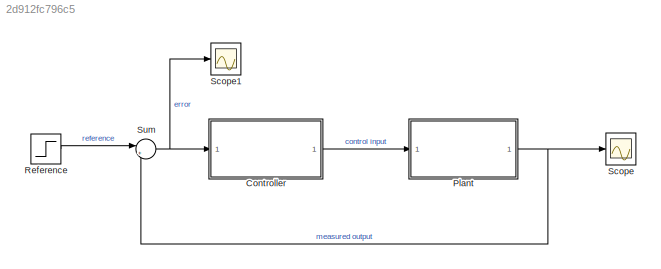
MODEL slx_2d912fc796c5
KIND model
CONFIG AbsTol = auto
CONFIG FixedStep = auto
CONFIG MaxStep = 0.01
CONFIG MinStep = auto
CONFIG RelTol = 1e-4
CONFIG SampleTimeConstraint = Unconstrained
CONFIG Solver = VariableStepAuto
CONFIG SolverMode = Auto
CONFIG SolverName = VariableStepAuto
CONFIG StartTime = 0.0
CONFIG StopTime = 25
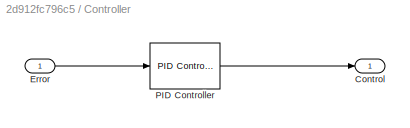
BLOCK [SubSystem] Controller
  Ports = [1, 1]
  RequestExecContextInheritance = off
  Variant = off
BLOCK [Outport] Controller/Control
  IconDisplay = Port number
BLOCK [Inport] Controller/Error
  IconDisplay = Port number
BLOCK [Reference] Controller/PID Controller  REF=simulink/Continuous/PID Controller
  Ports = [1, 1]
  SourceBlock = simulink/Continuous/PID Controller
  SourceType = PID 1dof
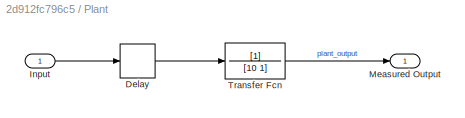
BLOCK [SubSystem] Plant
  Ports = [1, 1]
  RequestExecContextInheritance = off
  Variant = off
BLOCK [Delay] Plant/Delay
  DelayLength = 1
  InitialCondition = 0
  InputPortMap = u0
  Ports = [1, 1]
  SampleTime = 0.8
BLOCK [Inport] Plant/Input
  IconDisplay = Port number
BLOCK [Outport] Plant/Measured Output
  IconDisplay = Port number
BLOCK [TransferFcn] Plant/Transfer Fcn
  Denominator = [10 1]
BLOCK [Step] Reference
  SampleTime = 0
  Time = 0
BLOCK [Scope] Scope
  Ports = [1]
  ScopeSpecificationString = Simulink.scopes.TimeScopeBlockCfg('CurrentConfiguration', extmgr.ConfigurationSet(extmgr.Configuration('Core','General UI',true),extmgr.Configuration('Core','Source UI',true),extmgr.Configuration('Sources','WiredSimulink',true),extmgr.Configuration('Visuals','Time Domain',true,'SerializedDisplays',{struct('MinYLimReal','-1.00000','MaxYLimReal','1.00000','YLabelReal','','MinYLimMag','0.00000','MaxY...<+1363ch>
BLOCK [Scope] Scope1
  Ports = [1]
  ScopeSpecificationString = Simulink.scopes.TimeScopeBlockCfg('CurrentConfiguration', extmgr.ConfigurationSet(extmgr.Configuration('Core','General UI',true),extmgr.Configuration('Core','Source UI',true),extmgr.Configuration('Sources','WiredSimulink',true,'DataLoggingVariableName','ScopeData1'),extmgr.Configuration('Visuals','Time Domain',true,'SerializedDisplays',{struct('MinYLimReal','-0.21417','MaxYLimReal','1.13491','YLab...<+1726ch>
BLOCK [Sum] Sum
  IconShape = round
  InputSameDT = off
  Inputs = |+-
  OutDataTypeStr = Inherit: Inherit via internal rule
  Ports = [2, 1]
  SaturateOnIntegerOverflow = off
LINE Controller/Error:1 -> Controller/PID Controller:1
LINE Controller/PID Controller:1 -> Controller/Control:1
LINE Controller:1 -> Plant:1
LINE Plant/Delay:1 -> Plant/Transfer Fcn:1
LINE Plant/Input:1 -> Plant/Delay:1
LINE Plant/Transfer Fcn:1 -> Plant/Measured Output:1
NET Plant:1 -> Scope:1, Sum:2
LINE Reference:1 -> Sum:1
NET Sum:1 -> Controller:1, Scope1:1
note: NET lines group one-source signal fan-out (src -> all destinations, sorted); 1:1 wires keep LINE
